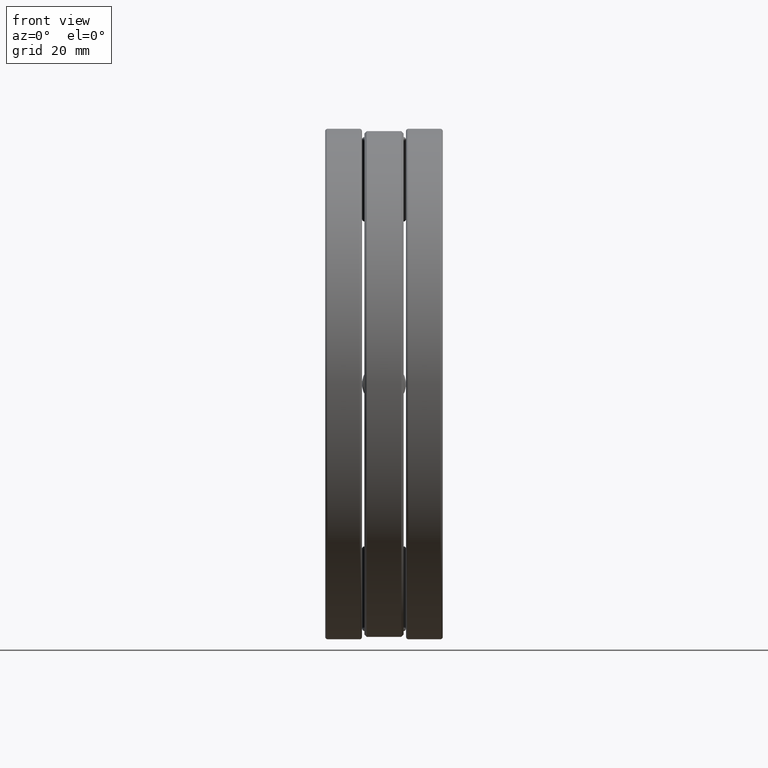
[diagram: clean part render]
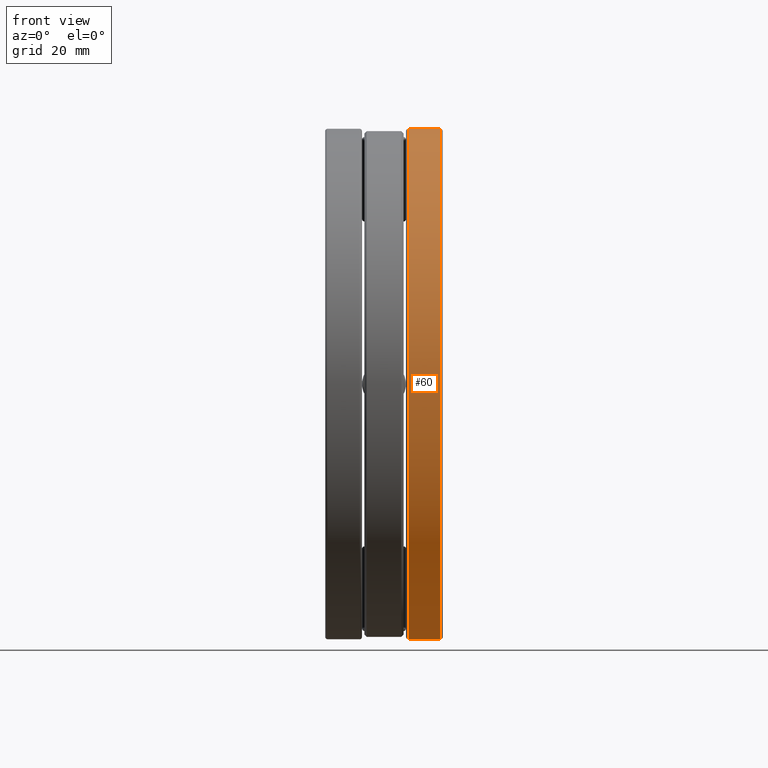
[diagram: same view with one face highlighted and labeled with its STEP entity id]
A machine part, front view. The second image highlights one B-rep face of the part: STEP entity #60.
In plain terms, the highlighted cylindrical surface (bore or boss wall) has radius 55.1656 mm, axis along (-1, -0, -0).
Its self-contained STEP definition (entity closure, byte-faithful):
#24 = ORIENTED_EDGE ( 'NONE', *, *, #600, .F. ) ;
#60 = ADVANCED_FACE ( 'NONE', ( #1458, #846 ), #313, .T. ) ;
#77 = DIRECTION ( 'NONE',  ( 0.0000000000000000000, 0.0000000000000000000, 1.000000000000000000 ) ) ;
#151 = EDGE_LOOP ( 'NONE', ( #747 ) ) ;
#214 = DIRECTION ( 'NONE',  ( -1.000000000000000000, -0.0000000000000000000, -0.0000000000000000000 ) ) ;
#304 = DIRECTION ( 'NONE',  ( -1.000000000000000000, -0.0000000000000000000, -0.0000000000000000000 ) ) ;
#313 = CYLINDRICAL_SURFACE ( 'NONE', #1114, 2.171875000000000000 ) ;
#415 = CARTESIAN_POINT ( 'NONE',  ( 0.4799999999999999800, 0.0000000000000000000, 0.0000000000000000000 ) ) ;
#585 = EDGE_CURVE ( 'NONE', #1435, #1435, #1395, .T. ) ;
#600 = EDGE_CURVE ( 'NONE', #1247, #1247, #969, .T. ) ;
#635 = DIRECTION ( 'NONE',  ( -1.000000000000000000, -0.0000000000000000000, -0.0000000000000000000 ) ) ;
#723 = EDGE_LOOP ( 'NONE', ( #24 ) ) ;
#747 = ORIENTED_EDGE ( 'NONE', *, *, #585, .T. ) ;
#846 = FACE_OUTER_BOUND ( 'NONE', #151, .T. ) ;
#961 = DIRECTION ( 'NONE',  ( 0.0000000000000000000, 0.0000000000000000000, 1.000000000000000000 ) ) ;
#969 = CIRCLE ( 'NONE', #1177, 2.171875000000000000 ) ;
#986 = AXIS2_PLACEMENT_3D ( 'NONE', #415, #635, #961 ) ;
#1114 = AXIS2_PLACEMENT_3D ( 'NONE', #1324, #214, #1331 ) ;
#1177 = AXIS2_PLACEMENT_3D ( 'NONE', #1181, #304, #77 ) ;
#1181 = CARTESIAN_POINT ( 'NONE',  ( 0.2075000000000000200, 0.0000000000000000000, 0.0000000000000000000 ) ) ;
#1247 = VERTEX_POINT ( 'NONE', #1328 ) ;
#1324 = CARTESIAN_POINT ( 'NONE',  ( 0.0000000000000000000, 0.0000000000000000000, 0.0000000000000000000 ) ) ;
#1328 = CARTESIAN_POINT ( 'NONE',  ( 0.2075000000000000200, 0.0000000000000000000, 2.171875000000000000 ) ) ;
#1331 = DIRECTION ( 'NONE',  ( 0.0000000000000000000, 0.0000000000000000000, 1.000000000000000000 ) ) ;
#1395 = CIRCLE ( 'NONE', #986, 2.171875000000000000 ) ;
#1435 = VERTEX_POINT ( 'NONE', #1451 ) ;
#1451 = CARTESIAN_POINT ( 'NONE',  ( 0.4799999999999999800, 0.0000000000000000000, 2.171875000000000000 ) ) ;
#1458 = FACE_OUTER_BOUND ( 'NONE', #723, .T. ) ;